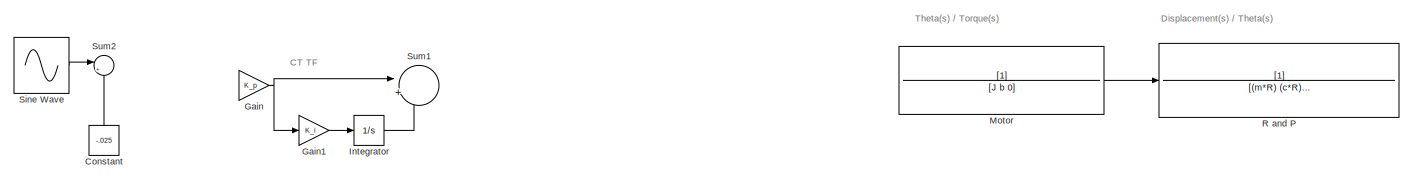
[diagram: root canvas - part 1/3, full width, top band]
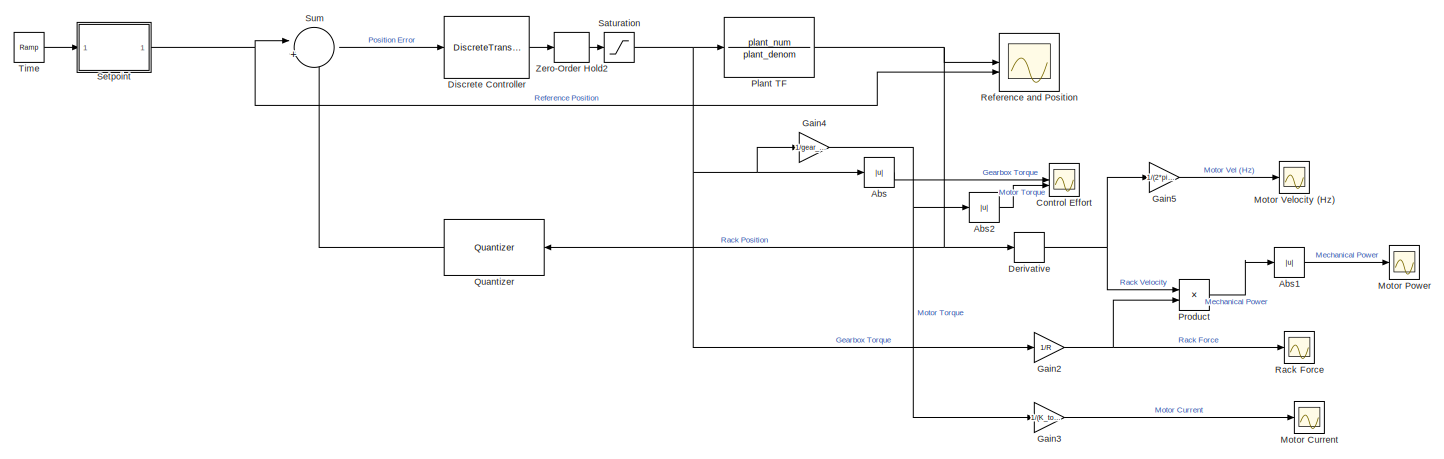
[diagram: root canvas - part 2/3, full width, middle band]
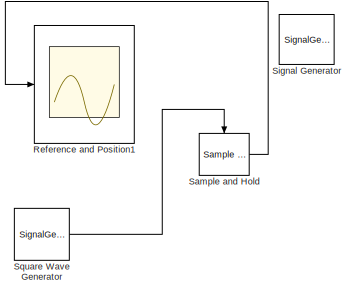
[diagram: root canvas - part 3/3, bottom left region]
MODEL slx_1e5a9672a0ad
KIND model
CONFIG AbsTol = auto
CONFIG EnableMultiTasking = off
CONFIG FixedStep = auto
CONFIG MaxStep = 0.00001
CONFIG MinStep = auto
CONFIG RelTol = 1e-6
CONFIG SampleTimeConstraint = Unconstrained
CONFIG SolverName = VariableStepAuto
CONFIG StartTime = 0.0
CONFIG StopTime = 3
BLOCK [Abs] Abs
  SaturateOnIntegerOverflow = off
BLOCK [Abs] Abs1
  SaturateOnIntegerOverflow = off
BLOCK [Abs] Abs2
  SaturateOnIntegerOverflow = off
BLOCK [Constant] Constant
  NameLocation = right
  Value = -.025
BLOCK [Scope] Control Effort
  Floating = off
  NumInputPorts = 2
  ScopeSpecificationString = Simulink.scopes.TimeScopeBlockCfg('CurrentConfiguration', extmgr.ConfigurationSet(extmgr.Configuration('Core','General UI',true),extmgr.Configuration('Core','Source UI',true),extmgr.Configuration('Sources','WiredSimulink',true,'DataLoggingVariableName','ScopeData1'),extmgr.Configuration('Visuals','Time Domain',true,'SerializedDisplays',{struct('MinYLimReal','-0.625','MaxYLimReal','5.625','YLabelRe...<+1518ch>
BLOCK [Derivative] Derivative
BLOCK [DiscreteTransferFcn] Discrete Controller
  CloseFcn = dspblkCoreblockFVToolHelper(gcbh,'close');
  CopyFcn = dspblkCoreblockFVToolHelper(gcbh,'copy');
  DeleteFcn = dspblkCoreblockFVToolHelper(gcbh,'close');
  Denominator = denom_discrete
  InputPortMap = u0
  LoadFcn = dspblkCoreblockFVToolHelper(gcbh,'load');
  ModelCloseFcn = dspblkCoreblockFVToolHelper(gcbh,'close');
  Numerator = num_discrete
  PostSaveFcn = dspblkCoreblockFVToolHelper(gcbh,'postsave');
  PreSaveFcn = dspblkCoreblockFVToolHelper(gcbh,'presave');
BLOCK [Gain] Gain
  Gain = K_p
BLOCK [Gain] Gain1
  Gain = K_i
BLOCK [Gain] Gain2
  Gain = 1/R
BLOCK [Gain] Gain3
  Gain = 1/(K_torque)
BLOCK [Gain] Gain4
  Gain = 1/gear_ratio
BLOCK [Gain] Gain5
  Gain = 1/(2*pi*R)*gear_ratio
BLOCK [Integrator] Integrator
  LimitOutput = on
  LowerSaturationLimit = -5
  UpperSaturationLimit = 5
BLOCK [TransferFcn] Motor
  Denominator = [J b 0]
BLOCK [Scope] Motor Current
  Floating = off
  NumInputPorts = 1
  ScopeSpecificationString = Simulink.scopes.TimeScopeBlockCfg('CurrentConfiguration', extmgr.ConfigurationSet(extmgr.Configuration('Core','General UI',true),extmgr.Configuration('Core','Source UI',true),extmgr.Configuration('Sources','WiredSimulink',true,'DataLoggingVariableName','MotorCurrent','DataLogging',true,'DataLoggingSaveFormat','Structure'),extmgr.Configuration('Visuals','Time Domain',true,'SerializedDisplays',{stru...<+1576ch>
BLOCK [Scope] Motor Power
  Floating = off
  NumInputPorts = 1
  ScopeSpecificationString = Simulink.scopes.TimeScopeBlockCfg('CurrentConfiguration', extmgr.ConfigurationSet(extmgr.Configuration('Core','General UI',true),extmgr.Configuration('Core','Source UI',true),extmgr.Configuration('Sources','WiredSimulink',true,'DataLoggingVariableName','MotorPowerOut','DataLogging',true,'DataLoggingDecimateData',true,'DataLoggingDecimation','4','DataLoggingSaveFormat','StructureWithTime'),extmgr.C...<+1697ch>
BLOCK [Scope] Motor Velocity (Hz)
  Floating = off
  NumInputPorts = 1
  ScopeSpecificationString = Simulink.scopes.TimeScopeBlockCfg('CurrentConfiguration', extmgr.ConfigurationSet(extmgr.Configuration('Core','General UI',true),extmgr.Configuration('Core','Source UI',true),extmgr.Configuration('Sources','WiredSimulink',true,'DataLoggingVariableName','ScopeData1'),extmgr.Configuration('Visuals','Time Domain',true,'SerializedDisplays',{struct('MinYLimReal','-85.41272','MaxYLimReal','51.91436','YL...<+1520ch>
BLOCK [TransferFcn] Plant TF
  Denominator = plant_denom
  Numerator = plant_num
BLOCK [Product] Product
BLOCK [Quantizer] Quantizer
  QuantizationInterval = 0.0005
BLOCK [TransferFcn] R and P
  Denominator = [(m*R)  (c*R)  k*R]
BLOCK [Scope] Rack Force
  Floating = off
  NumInputPorts = 1
  ScopeSpecificationString = Simulink.scopes.TimeScopeBlockCfg('CurrentConfiguration', extmgr.ConfigurationSet(extmgr.Configuration('Core','General UI',true),extmgr.Configuration('Core','Source UI',true),extmgr.Configuration('Sources','WiredSimulink',true,'DataLoggingVariableName','ScopeData3'),extmgr.Configuration('Visuals','Time Domain',true,'SerializedDisplays',{struct('MinYLimReal','-556.46351','MaxYLimReal','84.14135','Y...<+1497ch>
BLOCK [Scope] Reference and Position
  Floating = off
  NumInputPorts = 2
  ScopeSpecificationString = Simulink.scopes.TimeScopeBlockCfg('CurrentConfiguration', extmgr.ConfigurationSet(extmgr.Configuration('Core','General UI',true),extmgr.Configuration('Core','Source UI',true),extmgr.Configuration('Sources','WiredSimulink',true,'DataLogging',true,'DataLoggingDecimateData',true,'DataLoggingDecimation','4'),extmgr.Configuration('Visuals','Time Domain',true,'SerializedDisplays',{struct('MinYLimReal','...<+1707ch>
BLOCK [Scope] Reference and Position1
  Floating = off
  NumInputPorts = 2
  ScopeSpecificationString = Simulink.scopes.TimeScopeBlockCfg('CurrentConfiguration', extmgr.ConfigurationSet(extmgr.Configuration('Core','General UI',true),extmgr.Configuration('Core','Source UI',true),extmgr.Configuration('Sources','WiredSimulink',true,'DataLoggingVariableName','ScopeData1'),extmgr.Configuration('Visuals','Time Domain',true,'SerializedDisplays',{struct('MinYLimReal','-0.1','MaxYLimReal','0.1','YLabelReal',...<+1615ch>
BLOCK [Reference] Sample and Hold  REF=dspsigops/Sample
and Hold
  LibrarySourceBlock = dsphdlsupportsigops/Sample\nand Hold
  SourceBlock = dspsigops/Sample\nand Hold
  SourceType = Sample and Hold
BLOCK [Saturate] Saturation
  LowerLimit = -5
  UpperLimit = 5
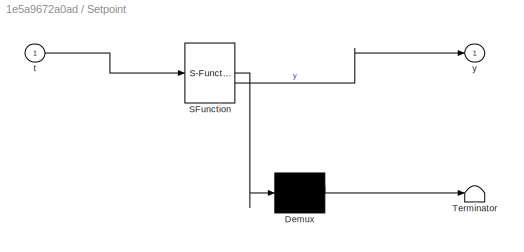
BLOCK [SubSystem] Setpoint
  ErrorFcn = Stateflow.Translate.translate
  PermitHierarchicalResolution = ExplicitOnly
  SFBlockType = MATLAB Function
  TreatAsAtomicUnit = on
BLOCK [Demux] Setpoint/ Demux 
  Outputs = 1
BLOCK [S-Function] Setpoint/ SFunction 
  EnableBusSupport = on
  FunctionName = sf_sfun
  PortCounts = [1 2]
  SFcnIsStateOwnerBlock = off
  SFunctionDeploymentMode = off
  Tag = Stateflow S-Function 2
BLOCK [Terminator] Setpoint/ Terminator 
BLOCK [Inport] Setpoint/t
BLOCK [Outport] Setpoint/y
BLOCK [SignalGenerator] Signal Generator
  Amplitude = .05/2
  Frequency = 2
BLOCK [Sin] Sine Wave
  Amplitude = .05/2
  Frequency = 2*pi*2
  Phase = pi/2
  SampleTime = 0
  VectorParams1D = off
BLOCK [SignalGenerator] Square Wave Generator
  Frequency = 1/T
  WaveForm = square
BLOCK [Sum] Sum
  Inputs = |+-
BLOCK [Sum] Sum1
  Inputs = |++
BLOCK [Sum] Sum2
  Inputs = |++
BLOCK [Reference] Time  REF=simulink/Sources/Ramp
  SourceBlock = simulink/Sources/Ramp
  SourceType = Ramp
BLOCK [ZeroOrderHold] Zero-Order Hold2
  SampleTime = T
ANNOTATION (root): CT TF
ANNOTATION (root): Displacement(s) / Theta(s)
ANNOTATION (root): Theta(s) / Torque(s)
LINE Abs1:1 -> Motor Power:1
LINE Abs2:1 -> Control Effort:2
LINE Abs:1 -> Control Effort:1
LINE Constant:1 -> Sum2:2
NET Derivative:1 -> Gain5:1, Product:1
LINE Discrete Controller:1 -> Zero-Order Hold2:1
LINE Gain1:1 -> Integrator:1
NET Gain2:1 -> Product:2, Rack Force:1
LINE Gain3:1 -> Motor Current:1
NET Gain4:1 -> Abs2:1, Gain3:1
LINE Gain5:1 -> Motor Velocity (Hz):1
NET Gain:1 -> Gain1:1, Sum1:1
LINE Integrator:1 -> Sum1:2
LINE Motor:1 -> R and P:1
NET Plant TF:1 -> Derivative:1, Quantizer:1, Reference and Position:1
LINE Product:1 -> Abs1:1
LINE Quantizer:1 -> Sum:2
LINE Sample and Hold:1 -> Reference and Position1:1
NET Saturation:1 -> Abs:1, Gain2:1, Gain4:1, Plant TF:1
NET Setpoint:1 -> Reference and Position:2, Sum:1
LINE Sine Wave:1 -> Sum2:1
LINE Square Wave Generator:1 -> Sample and Hold:trigger
LINE Sum:1 -> Discrete Controller:1
LINE Time:1 -> Setpoint:1
LINE Zero-Order Hold2:1 -> Saturation:1
note: NET lines group one-source signal fan-out (src -> all destinations, sorted); 1:1 wires keep LINE
CHART Setpoint states=1 transitions=1
  STATE_LABEL 'eML_blk_kernel()'
  STATE_LABEL 'SCRIPT:\nfunction y = fcn(t)\n    time = mod(t, .56);\n    \n    if (time <= .12)\n        y = 0;\n    elseif (time <= .24)\n        y = (-41.6666667*(time - .12))*1e-2;\n    elseif (time <= .323)\n        y = -5e-2;\n    else\n        y = (21.0965609*(time - .323) - 5)*1e-2;\n    end\nend'
CHART  states=0 transitions=0
